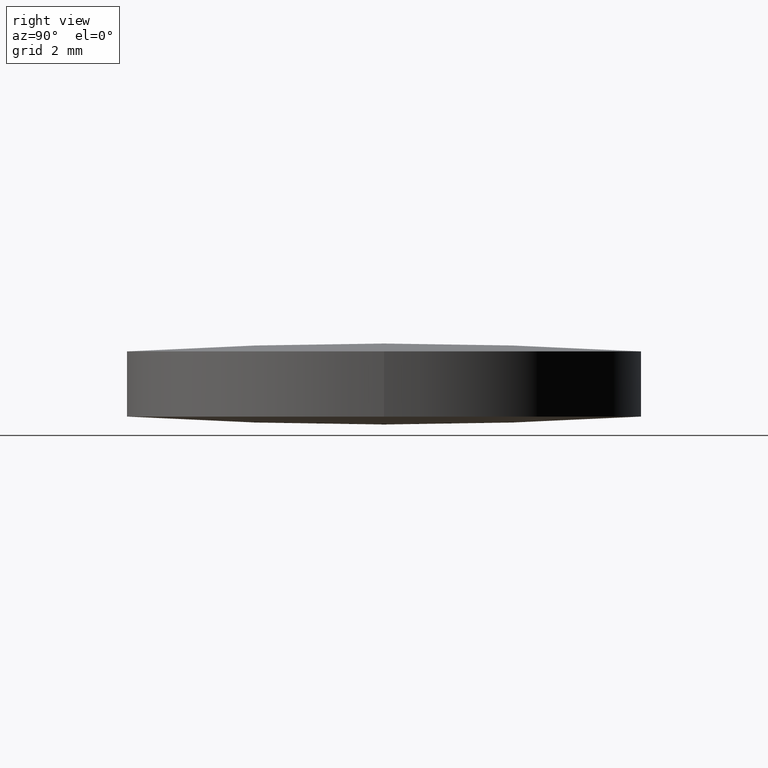
[diagram: clean part render]
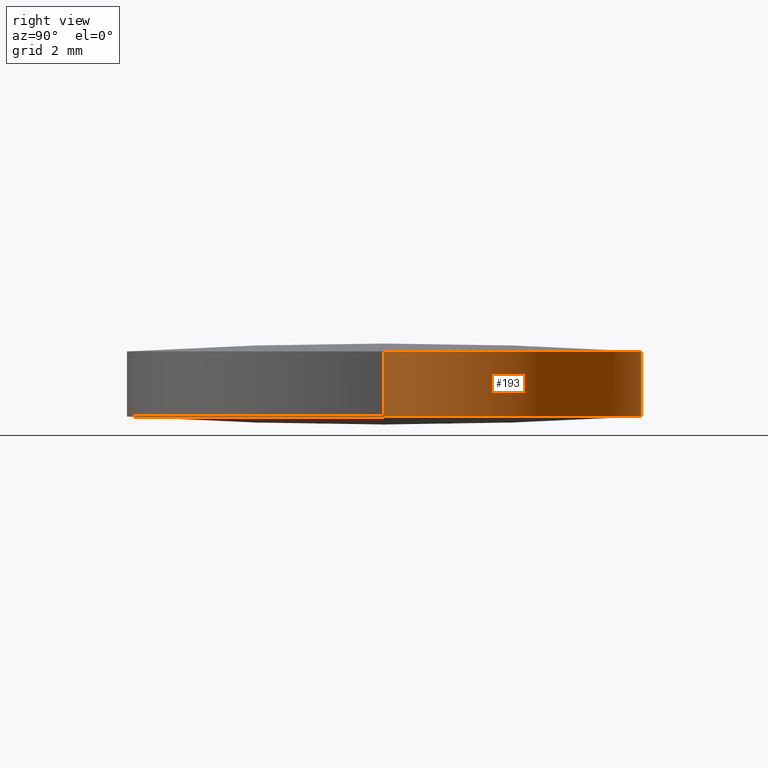
[diagram: same view with one face highlighted and labeled with its STEP entity id]
A machine part, right view. The second image highlights one B-rep face of the part: STEP entity #193.
In plain terms, the highlighted cylindrical surface (partial cylindrical patch) has radius 6.35 mm, axis along (0, 0, 1).
Its self-contained STEP definition (entity closure, byte-faithful):
#1 = AXIS2_PLACEMENT_3D ( 'NONE', #247, #229, #138 ) ;
#17 = EDGE_CURVE ( 'NONE', #152, #101, #275, .T. ) ;
#25 = DIRECTION ( 'NONE',  ( -0.0000000000000000000, -0.0000000000000000000, -1.000000000000000000 ) ) ;
#26 = DIRECTION ( 'NONE',  ( -0.0000000000000000000, -0.0000000000000000000, -1.000000000000000000 ) ) ;
#27 = CARTESIAN_POINT ( 'NONE',  ( -6.349999999999999600, 1.998896044546239400E-015, 0.1951672643184800000 ) ) ;
#34 = EDGE_CURVE ( 'NONE', #175, #208, #154, .T. ) ;
#39 = CIRCLE ( 'NONE', #143, 6.349999999999999600 ) ;
#46 = ORIENTED_EDGE ( 'NONE', *, *, #17, .F. ) ;
#48 = CARTESIAN_POINT ( 'NONE',  ( 2.498001805406600200E-016, 1.221245327087670000E-015, 1.804832735681519900 ) ) ;
#66 = VERTEX_POINT ( 'NONE', #96 ) ;
#70 = ORIENTED_EDGE ( 'NONE', *, *, #94, .F. ) ;
#71 = CIRCLE ( 'NONE', #1, 6.349999999999999600 ) ;
#75 = CARTESIAN_POINT ( 'NONE',  ( -2.220774660677933400E-014, 6.350000000000019200, 0.1951672643184799200 ) ) ;
#76 = DIRECTION ( 'NONE',  ( 1.000000000000000000, 0.0000000000000000000, 0.0000000000000000000 ) ) ;
#77 = DIRECTION ( 'NONE',  ( 0.0000000000000000000, 0.0000000000000000000, 1.000000000000000000 ) ) ;
#78 = CARTESIAN_POINT ( 'NONE',  ( 6.349999999999999600, 1.221245327087670000E-015, 1.804832735681519900 ) ) ;
#81 = VERTEX_POINT ( 'NONE', #267 ) ;
#82 = ORIENTED_EDGE ( 'NONE', *, *, #265, .T. ) ;
#83 = EDGE_CURVE ( 'NONE', #66, #175, #39, .T. ) ;
#91 = EDGE_LOOP ( 'NONE', ( #46, #82, #123, #240, #70, #219 ) ) ;
#94 = EDGE_CURVE ( 'NONE', #81, #208, #206, .T. ) ;
#95 = DIRECTION ( 'NONE',  ( 1.000000000000000000, 0.0000000000000000000, 0.0000000000000000000 ) ) ;
#96 = CARTESIAN_POINT ( 'NONE',  ( -6.349999999999999600, 1.998896044546239400E-015, 1.804832735681519900 ) ) ;
#101 = VERTEX_POINT ( 'NONE', #75 ) ;
#103 = LINE ( 'NONE', #226, #147 ) ;
#105 = CYLINDRICAL_SURFACE ( 'NONE', #168, 6.349999999999999600 ) ;
#120 = DIRECTION ( 'NONE',  ( -0.0000000000000000000, -0.0000000000000000000, -1.000000000000000000 ) ) ;
#123 = ORIENTED_EDGE ( 'NONE', *, *, #83, .T. ) ;
#124 = EDGE_CURVE ( 'NONE', #101, #81, #71, .T. ) ;
#126 = VECTOR ( 'NONE', #188, 1000.000000000000000 ) ;
#136 = CARTESIAN_POINT ( 'NONE',  ( 6.349999999999999600, 1.221245327087670000E-015, 0.1951672643184800000 ) ) ;
#138 = DIRECTION ( 'NONE',  ( 1.000000000000000000, 0.0000000000000000000, 0.0000000000000000000 ) ) ;
#143 = AXIS2_PLACEMENT_3D ( 'NONE', #48, #25, #95 ) ;
#144 = CARTESIAN_POINT ( 'NONE',  ( 2.498001805406600200E-016, 1.221245327087670000E-015, 0.1951672643184800000 ) ) ;
#147 = VECTOR ( 'NONE', #224, 1000.000000000000000 ) ;
#152 = VERTEX_POINT ( 'NONE', #27 ) ;
#154 = CIRCLE ( 'NONE', #281, 6.349999999999999600 ) ;
#168 = AXIS2_PLACEMENT_3D ( 'NONE', #144, #77, #170 ) ;
#170 = DIRECTION ( 'NONE',  ( 1.000000000000000000, 0.0000000000000000000, 0.0000000000000000000 ) ) ;
#175 = VERTEX_POINT ( 'NONE', #231 ) ;
#177 = FACE_OUTER_BOUND ( 'NONE', #91, .T. ) ;
#188 = DIRECTION ( 'NONE',  ( 0.0000000000000000000, 0.0000000000000000000, 1.000000000000000000 ) ) ;
#190 = DIRECTION ( 'NONE',  ( 1.000000000000000000, 0.0000000000000000000, 0.0000000000000000000 ) ) ;
#193 = ADVANCED_FACE ( 'NONE', ( #177 ), #105, .T. ) ;
#206 = LINE ( 'NONE', #136, #126 ) ;
#208 = VERTEX_POINT ( 'NONE', #78 ) ;
#212 = CARTESIAN_POINT ( 'NONE',  ( 2.498001805406600200E-016, 1.221245327087670000E-015, 1.804832735681519900 ) ) ;
#218 = AXIS2_PLACEMENT_3D ( 'NONE', #295, #26, #76 ) ;
#219 = ORIENTED_EDGE ( 'NONE', *, *, #124, .F. ) ;
#224 = DIRECTION ( 'NONE',  ( 0.0000000000000000000, 0.0000000000000000000, 1.000000000000000000 ) ) ;
#226 = CARTESIAN_POINT ( 'NONE',  ( -6.349999999999999600, 1.998896044546239400E-015, 0.1951672643184800000 ) ) ;
#229 = DIRECTION ( 'NONE',  ( -0.0000000000000000000, -0.0000000000000000000, -1.000000000000000000 ) ) ;
#231 = CARTESIAN_POINT ( 'NONE',  ( 2.220774660677933400E-014, 6.350000000000019200, 1.804832735681521000 ) ) ;
#240 = ORIENTED_EDGE ( 'NONE', *, *, #34, .T. ) ;
#247 = CARTESIAN_POINT ( 'NONE',  ( 2.498001805406600200E-016, 1.221245327087670000E-015, 0.1951672643184800000 ) ) ;
#265 = EDGE_CURVE ( 'NONE', #152, #66, #103, .T. ) ;
#267 = CARTESIAN_POINT ( 'NONE',  ( 6.349999999999999600, 1.221245327087670000E-015, 0.1951672643184800000 ) ) ;
#275 = CIRCLE ( 'NONE', #218, 6.349999999999999600 ) ;
#281 = AXIS2_PLACEMENT_3D ( 'NONE', #212, #120, #190 ) ;
#295 = CARTESIAN_POINT ( 'NONE',  ( 2.498001805406600200E-016, 1.221245327087670000E-015, 0.1951672643184800000 ) ) ;